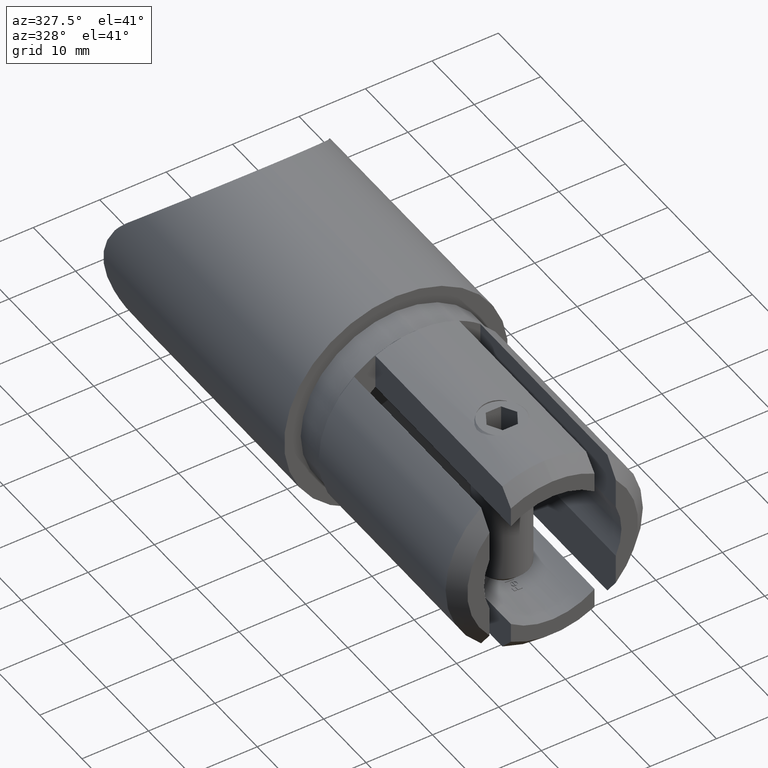
[diagram: clean part render]
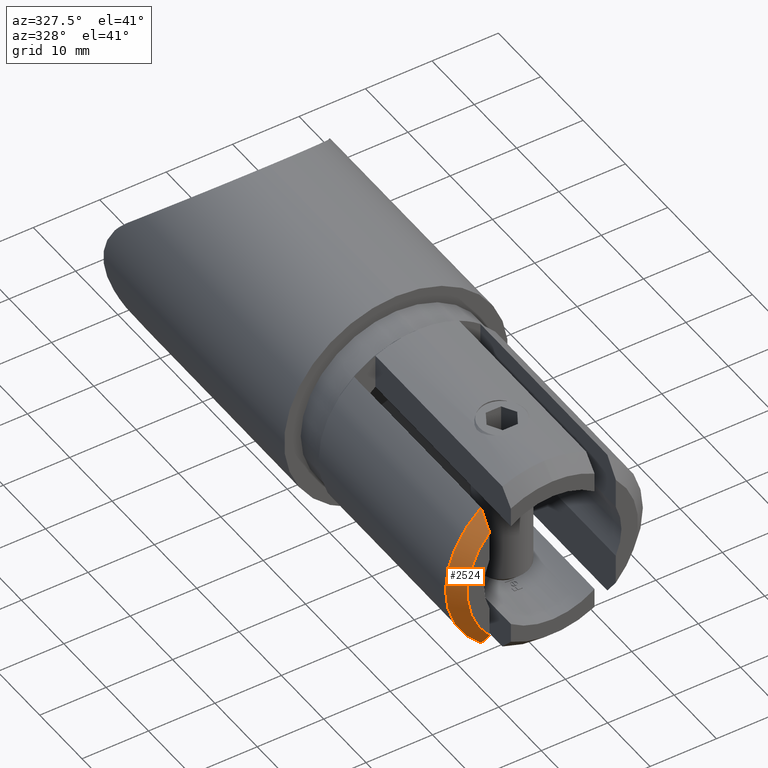
[diagram: same view with one face highlighted and labeled with its STEP entity id]
A machine part, auxiliary view. The second image highlights one B-rep face of the part: STEP entity #2524.
In plain terms, the highlighted conical surface has half-angle 45 deg.
Its self-contained STEP definition (entity closure, byte-faithful):
#487 = VERTEX_POINT ( 'NONE', #6064 ) ;
#651 = AXIS2_PLACEMENT_3D ( 'NONE', #7949, #1403, #7845 ) ;
#1159 = CARTESIAN_POINT ( 'NONE',  ( -9.499999999999996400, -34.99999999999997900, -11.41369791084379900 ) ) ;
#1403 = DIRECTION ( 'NONE',  ( 0.0000000000000000000, 1.000000000000000000, 0.0000000000000000000 ) ) ;
#1748 = CARTESIAN_POINT ( 'NONE',  ( -9.499999999999996400, -37.00000000000000000, 8.652889690733363900 ) ) ;
#2524 = ADVANCED_FACE ( 'NONE', ( #8675 ), #3403, .T. ) ;
#2780 = CARTESIAN_POINT ( 'NONE',  ( -9.499999999999996400, -37.00000000000000000, -8.652889690733363900 ) ) ;
#3290 = CARTESIAN_POINT ( 'NONE',  ( -9.499999999999996400, -35.69125320713016000, -10.51433030833079700 ) ) ;
#3333 = CARTESIAN_POINT ( 'NONE',  ( -9.499999999999996400, -37.00000000000000000, 8.652889690733363900 ) ) ;
#3395 = EDGE_LOOP ( 'NONE', ( #10962, #13474, #9278, #8984 ) ) ;
#3403 = CONICAL_SURFACE ( 'NONE', #651, 12.84999999999998700, 0.7853981633974466100 ) ;
#3492 = VERTEX_POINT ( 'NONE', #6818 ) ;
#3723 = DIRECTION ( 'NONE',  ( 0.0000000000000000000, 0.0000000000000000000, -1.000000000000000000 ) ) ;
#3848 = EDGE_CURVE ( 'NONE', #10799, #4573, #13977, .T. ) ;
#4573 = VERTEX_POINT ( 'NONE', #2780 ) ;
#5494 = EDGE_CURVE ( 'NONE', #3492, #487, #8477, .T. ) ;
#5498 = CARTESIAN_POINT ( 'NONE',  ( -9.499999999999996400, -36.36320931427685100, -9.598557624106618400 ) ) ;
#6064 = CARTESIAN_POINT ( 'NONE',  ( -9.499999999999996400, -34.99999999999997900, 11.41369791084379900 ) ) ;
#6592 = B_SPLINE_CURVE_WITH_KNOTS ( 'NONE', 3,
 ( #10300, #8264, #11553, #1748 ),
 .UNSPECIFIED., .F., .F.,
 ( 4, 4 ),
 ( 0.02674051758673829500, 0.03014796635975057500 ),
 .UNSPECIFIED. ) ;
#6818 = CARTESIAN_POINT ( 'NONE',  ( -9.499999999999996400, -34.99999999999997900, -11.41369791084379900 ) ) ;
#6939 = CARTESIAN_POINT ( 'NONE',  ( 0.0000000000000000000, -34.99999999999997900, 0.0000000000000000000 ) ) ;
#6968 = AXIS2_PLACEMENT_3D ( 'NONE', #11109, #9822, #9914 ) ;
#7845 = DIRECTION ( 'NONE',  ( 0.0000000000000000000, 0.0000000000000000000, 1.000000000000000000 ) ) ;
#7949 = CARTESIAN_POINT ( 'NONE',  ( 0.0000000000000000000, -37.00000000000000000, 0.0000000000000000000 ) ) ;
#8264 = CARTESIAN_POINT ( 'NONE',  ( -9.499999999999996400, -35.69201697714373000, 10.51333659141363700 ) ) ;
#8477 = CIRCLE ( 'NONE', #12764, 14.85000000000000100 ) ;
#8675 = FACE_OUTER_BOUND ( 'NONE', #3395, .T. ) ;
#8794 = CARTESIAN_POINT ( 'NONE',  ( -9.499999999999996400, -37.00000000000000000, -8.652889690733363900 ) ) ;
#8984 = ORIENTED_EDGE ( 'NONE', *, *, #3848, .F. ) ;
#9278 = ORIENTED_EDGE ( 'NONE', *, *, #10794, .F. ) ;
#9822 = DIRECTION ( 'NONE',  ( 0.0000000000000000000, -1.000000000000000000, 0.0000000000000000000 ) ) ;
#9914 = DIRECTION ( 'NONE',  ( 0.0000000000000000000, 0.0000000000000000000, -1.000000000000000000 ) ) ;
#10300 = CARTESIAN_POINT ( 'NONE',  ( -9.499999999999996400, -34.99999999999997900, 11.41369791084379900 ) ) ;
#10794 = EDGE_CURVE ( 'NONE', #4573, #3492, #12311, .T. ) ;
#10799 = VERTEX_POINT ( 'NONE', #3333 ) ;
#10962 = ORIENTED_EDGE ( 'NONE', *, *, #13638, .F. ) ;
#11109 = CARTESIAN_POINT ( 'NONE',  ( 0.0000000000000000000, -37.00000000000000000, 0.0000000000000000000 ) ) ;
#11553 = CARTESIAN_POINT ( 'NONE',  ( -9.499999999999996400, -36.36537951238995700, 9.595334764836451300 ) ) ;
#12311 = B_SPLINE_CURVE_WITH_KNOTS ( 'NONE', 3,
 ( #8794, #5498, #3290, #1159 ),
 .UNSPECIFIED., .F., .F.,
 ( 4, 4 ),
 ( 0.04901680678906417800, 0.05244890788951043400 ),
 .UNSPECIFIED. ) ;
#12445 = DIRECTION ( 'NONE',  ( 0.0000000000000000000, 1.000000000000000000, 0.0000000000000000000 ) ) ;
#12764 = AXIS2_PLACEMENT_3D ( 'NONE', #6939, #12445, #3723 ) ;
#13474 = ORIENTED_EDGE ( 'NONE', *, *, #5494, .F. ) ;
#13638 = EDGE_CURVE ( 'NONE', #487, #10799, #6592, .T. ) ;
#13977 = CIRCLE ( 'NONE', #6968, 12.84999999999998700 ) ;